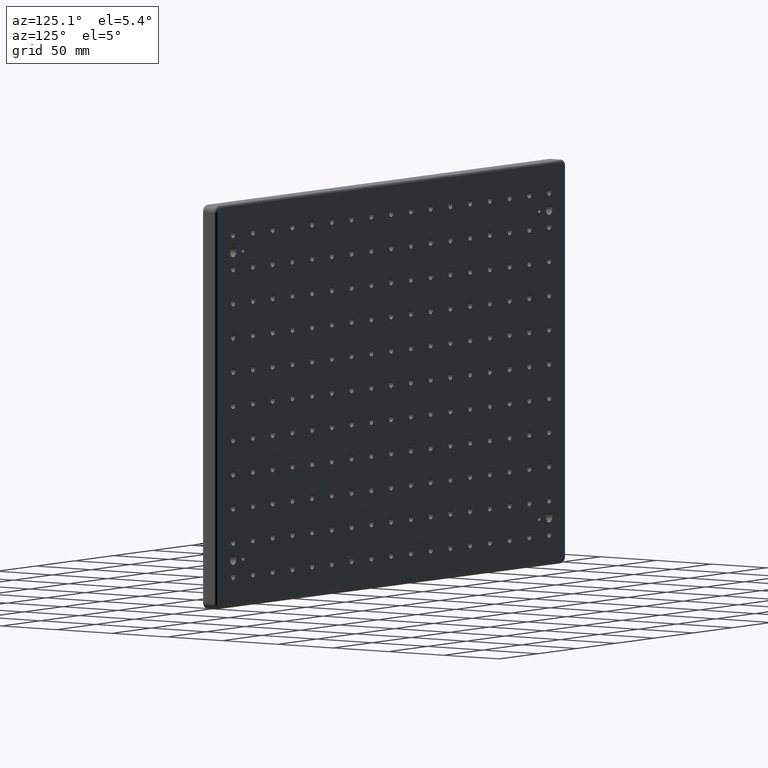
[diagram: clean part render]
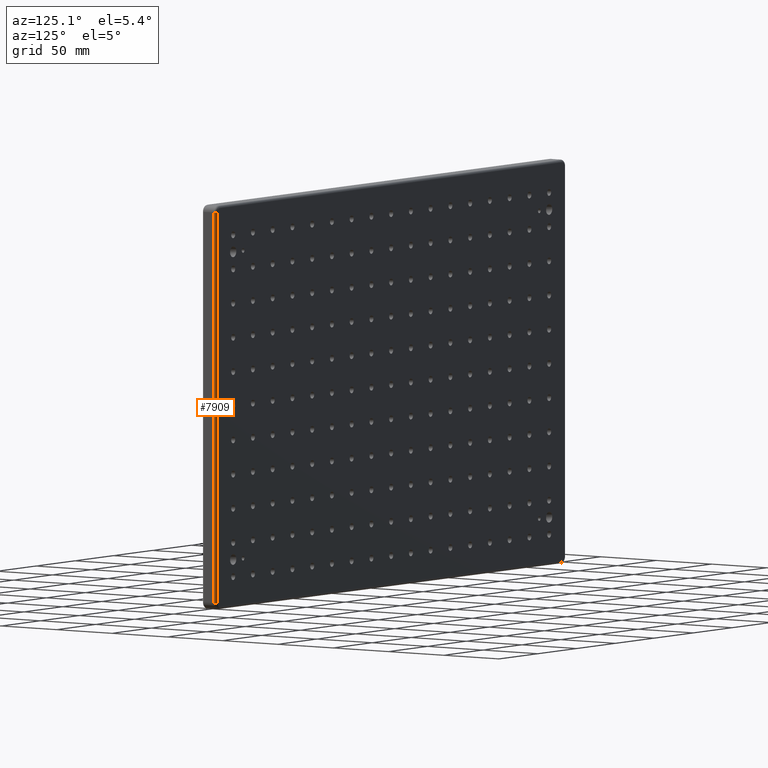
[diagram: same view with one face highlighted and labeled with its STEP entity id]
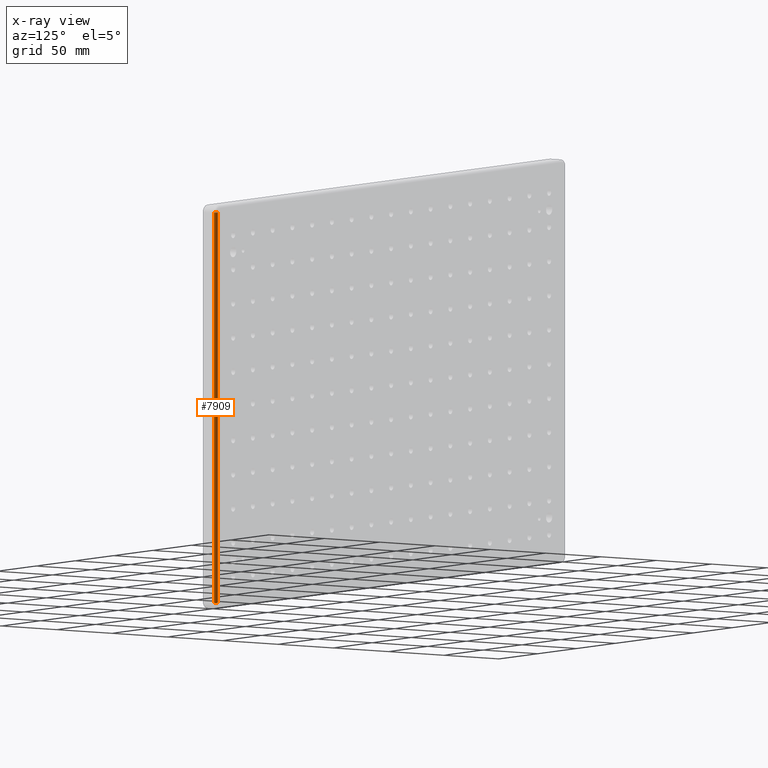
[diagram: x-ray of the same camera — body ghosted, the highlighted face saturated]
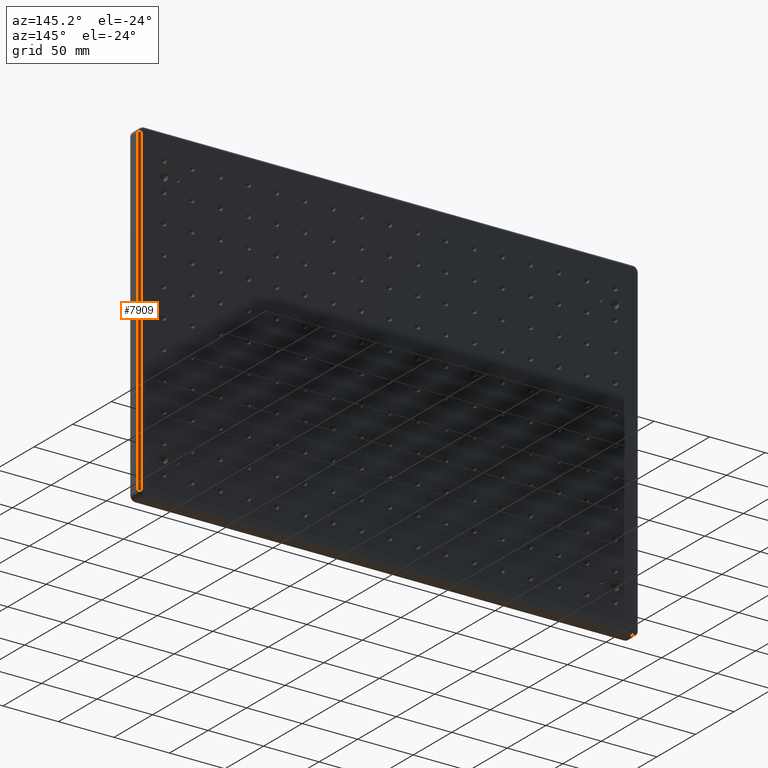
[diagram: same view with one face highlighted and labeled with its STEP entity id]
A machine part, auxiliary view. The second image highlights one B-rep face of the part: STEP entity #7909.
The next image is the same camera in x-ray: the body ghosted, the highlighted face saturated — about 0% of this face is hidden behind the body in this view.
A second angle (auxiliary view) of the same face is appended — the face is thin or edge-on in the first view.
In plain terms, the highlighted cylindrical surface (edge-blend (fillet) strip) has radius 2 mm, axis along (0, 0, -1).
Its self-contained STEP definition (entity closure, byte-faithful):
#217 = AXIS2_PLACEMENT_3D ( 'NONE', #1250, #13076, #1203 ) ;
#356 = VERTEX_POINT ( 'NONE', #6854 ) ;
#1203 = DIRECTION ( 'NONE',  ( -1.000000000000000000, 0.0000000000000000000, 0.0000000000000000000 ) ) ;
#1250 = CARTESIAN_POINT ( 'NONE',  ( 223.0000000000000000, 4.500000000000000000, -150.0000000000000000 ) ) ;
#2109 = VERTEX_POINT ( 'NONE', #10628 ) ;
#2482 = LINE ( 'NONE', #2973, #13326 ) ;
#2906 = ORIENTED_EDGE ( 'NONE', *, *, #6699, .F. ) ;
#2973 = CARTESIAN_POINT ( 'NONE',  ( 223.0000000000000000, 6.500000000000000000, -150.0000000000000000 ) ) ;
#3000 = ORIENTED_EDGE ( 'NONE', *, *, #13321, .T. ) ;
#3222 = EDGE_CURVE ( 'NONE', #356, #14482, #2482, .T. ) ;
#3576 = CYLINDRICAL_SURFACE ( 'NONE', #217, 2.000000000000001800 ) ;
#4661 = VERTEX_POINT ( 'NONE', #4833 ) ;
#4833 = CARTESIAN_POINT ( 'NONE',  ( 225.0000000000000000, 4.500000000000000000, -145.0000000000000000 ) ) ;
#6023 = AXIS2_PLACEMENT_3D ( 'NONE', #14873, #10197, #10046 ) ;
#6699 = EDGE_CURVE ( 'NONE', #4661, #2109, #13143, .T. ) ;
#6854 = CARTESIAN_POINT ( 'NONE',  ( 223.0000000000000000, 6.500000000000000000, 145.0000000000000000 ) ) ;
#7149 = ORIENTED_EDGE ( 'NONE', *, *, #14774, .F. ) ;
#7868 = FACE_OUTER_BOUND ( 'NONE', #14657, .T. ) ;
#7909 = ADVANCED_FACE ( 'NONE', ( #7868 ), #3576, .T. ) ;
#8239 = DIRECTION ( 'NONE',  ( 0.0000000000000000000, 0.0000000000000000000, 1.000000000000000000 ) ) ;
#8827 = VECTOR ( 'NONE', #9906, 1000.000000000000000 ) ;
#9432 = DIRECTION ( 'NONE',  ( 1.000000000000000000, 0.0000000000000000000, 0.0000000000000000000 ) ) ;
#9799 = ORIENTED_EDGE ( 'NONE', *, *, #3222, .F. ) ;
#9906 = DIRECTION ( 'NONE',  ( -0.0000000000000000000, -0.0000000000000000000, 1.000000000000000000 ) ) ;
#10046 = DIRECTION ( 'NONE',  ( 1.000000000000000000, 0.0000000000000000000, 0.0000000000000000000 ) ) ;
#10197 = DIRECTION ( 'NONE',  ( 0.0000000000000000000, 0.0000000000000000000, 1.000000000000000000 ) ) ;
#10628 = CARTESIAN_POINT ( 'NONE',  ( 225.0000000000000000, 4.500000000000000000, 145.0000000000000000 ) ) ;
#10794 = CARTESIAN_POINT ( 'NONE',  ( 223.0000000000000000, 4.500000000000000000, 145.0000000000000000 ) ) ;
#11752 = AXIS2_PLACEMENT_3D ( 'NONE', #10794, #8239, #9432 ) ;
#12134 = CARTESIAN_POINT ( 'NONE',  ( 223.0000000000000000, 6.500000000000000000, -145.0000000000000000 ) ) ;
#12337 = DIRECTION ( 'NONE',  ( 0.0000000000000000000, 0.0000000000000000000, -1.000000000000000000 ) ) ;
#13076 = DIRECTION ( 'NONE',  ( 0.0000000000000000000, 0.0000000000000000000, -1.000000000000000000 ) ) ;
#13143 = LINE ( 'NONE', #13324, #8827 ) ;
#13321 = EDGE_CURVE ( 'NONE', #4661, #14482, #14748, .T. ) ;
#13324 = CARTESIAN_POINT ( 'NONE',  ( 225.0000000000000000, 4.500000000000000000, 150.0000000000000000 ) ) ;
#13326 = VECTOR ( 'NONE', #12337, 1000.000000000000000 ) ;
#14482 = VERTEX_POINT ( 'NONE', #12134 ) ;
#14501 = CIRCLE ( 'NONE', #11752, 2.000000000000001800 ) ;
#14657 = EDGE_LOOP ( 'NONE', ( #3000, #9799, #7149, #2906 ) ) ;
#14748 = CIRCLE ( 'NONE', #6023, 2.000000000000001800 ) ;
#14774 = EDGE_CURVE ( 'NONE', #2109, #356, #14501, .T. ) ;
#14873 = CARTESIAN_POINT ( 'NONE',  ( 223.0000000000000000, 4.500000000000000000, -145.0000000000000000 ) ) ;